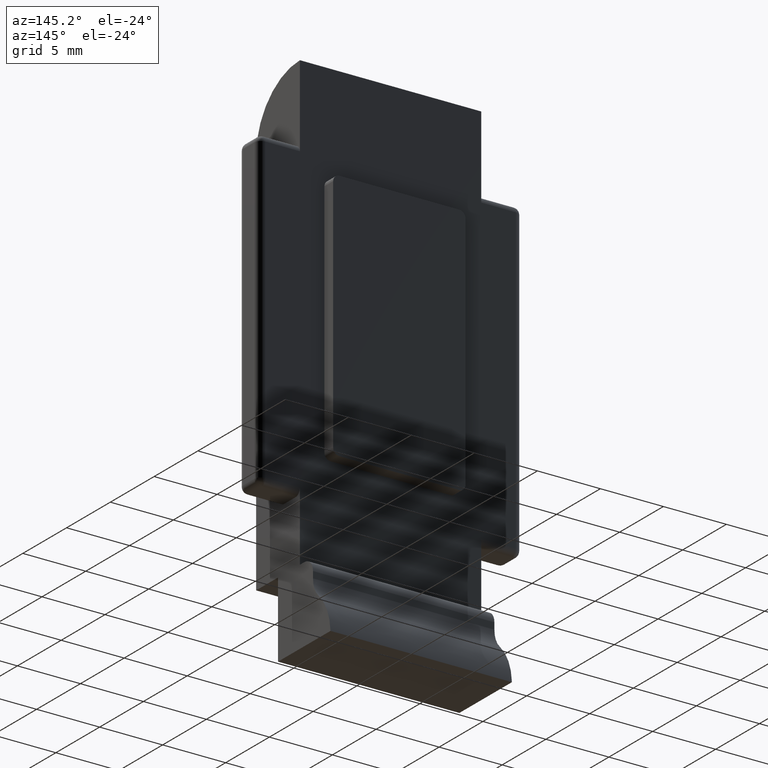
[diagram: clean part render]
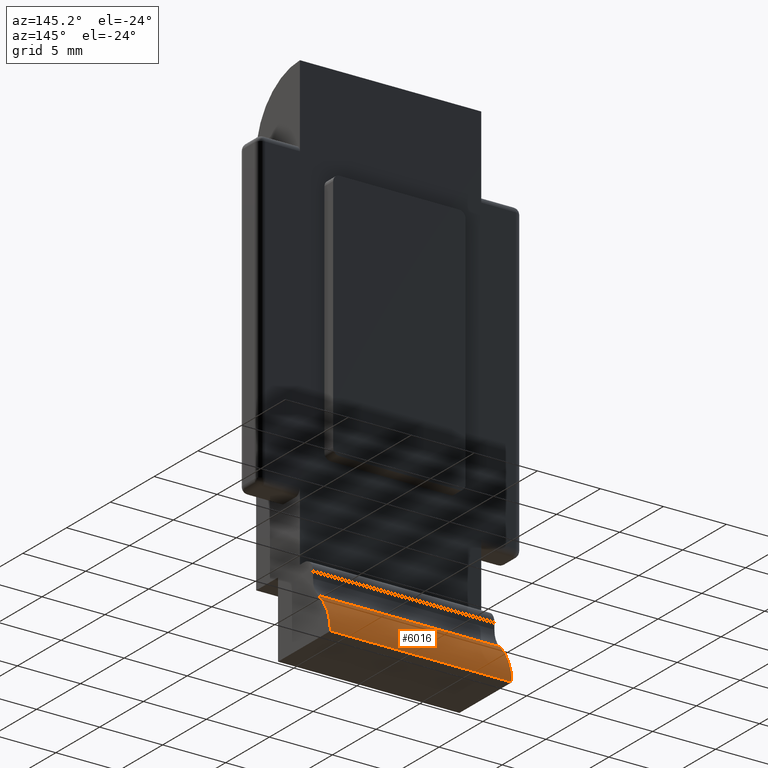
[diagram: same view with one face highlighted and labeled with its STEP entity id]
A machine part, auxiliary view. The second image highlights one B-rep face of the part: STEP entity #6016.
In plain terms, the highlighted cylindrical surface (partial cylindrical patch) has radius 4.5 mm, axis along (1, 0, 0).
Its self-contained STEP definition (entity closure, byte-faithful):
#326 = CYLINDRICAL_SURFACE ( 'NONE', #2310, 4.500000000000000900 ) ;
#992 = DIRECTION ( 'NONE',  ( -1.000000000000000000, -0.0000000000000000000, 0.0000000000000000000 ) ) ;
#1219 = DIRECTION ( 'NONE',  ( 1.000000000000000000, 0.0000000000000000000, 0.0000000000000000000 ) ) ;
#1513 = CARTESIAN_POINT ( 'NONE',  ( 14.40000000000000000, 3.499999999999996000, -5.999999999999998200 ) ) ;
#1570 = ORIENTED_EDGE ( 'NONE', *, *, #4689, .T. ) ;
#1807 = AXIS2_PLACEMENT_3D ( 'NONE', #7239, #992, #7961 ) ;
#1856 = CARTESIAN_POINT ( 'NONE',  ( 0.0000000000000000000, 2.116967167152068500, -2.964465433511271500 ) ) ;
#2310 = AXIS2_PLACEMENT_3D ( 'NONE', #7751, #5534, #6334 ) ;
#2403 = ORIENTED_EDGE ( 'NONE', *, *, #3708, .F. ) ;
#3168 = VERTEX_POINT ( 'NONE', #1856 ) ;
#3207 = DIRECTION ( 'NONE',  ( 1.000000000000000000, 0.0000000000000000000, 0.0000000000000000000 ) ) ;
#3708 = EDGE_CURVE ( 'NONE', #3168, #9021, #6477, .T. ) ;
#3819 = ORIENTED_EDGE ( 'NONE', *, *, #5608, .T. ) ;
#3828 = VECTOR ( 'NONE', #1219, 1000.000000000000000 ) ;
#3911 = DIRECTION ( 'NONE',  ( 0.0000000000000000000, 0.0000000000000000000, 1.000000000000000000 ) ) ;
#4429 = ORIENTED_EDGE ( 'NONE', *, *, #6787, .F. ) ;
#4550 = CARTESIAN_POINT ( 'NONE',  ( 0.0000000000000000000, 3.499999999999996000, -5.999999999999998200 ) ) ;
#4689 = EDGE_CURVE ( 'NONE', #3168, #8885, #5368, .T. ) ;
#5368 = LINE ( 'NONE', #5800, #3828 ) ;
#5534 = DIRECTION ( 'NONE',  ( 1.000000000000000000, 0.0000000000000000000, 0.0000000000000000000 ) ) ;
#5608 = EDGE_CURVE ( 'NONE', #8885, #6859, #8456, .T. ) ;
#5625 = CARTESIAN_POINT ( 'NONE',  ( 14.40000000000000000, 2.116967167152068500, -2.964465433511271500 ) ) ;
#5800 = CARTESIAN_POINT ( 'NONE',  ( 0.0000000000000000000, 2.116967167152068900, -2.964465433511271500 ) ) ;
#6016 = ADVANCED_FACE ( 'NONE', ( #9541 ), #326, .T. ) ;
#6334 = DIRECTION ( 'NONE',  ( 0.0000000000000000000, 0.0000000000000000000, -1.000000000000000000 ) ) ;
#6344 = EDGE_LOOP ( 'NONE', ( #2403, #1570, #3819, #4429 ) ) ;
#6477 = CIRCLE ( 'NONE', #6561, 4.500000000000000900 ) ;
#6561 = AXIS2_PLACEMENT_3D ( 'NONE', #6919, #7585, #3911 ) ;
#6787 = EDGE_CURVE ( 'NONE', #9021, #6859, #8565, .T. ) ;
#6859 = VERTEX_POINT ( 'NONE', #1513 ) ;
#6919 = CARTESIAN_POINT ( 'NONE',  ( 0.0000000000000000000, -0.9948567067557664300, -6.215088785697316700 ) ) ;
#7239 = CARTESIAN_POINT ( 'NONE',  ( 14.40000000000000000, -0.9948567067557664300, -6.215088785697316700 ) ) ;
#7410 = CARTESIAN_POINT ( 'NONE',  ( 0.0000000000000000000, 3.499999999999996000, -5.999999999999998200 ) ) ;
#7585 = DIRECTION ( 'NONE',  ( -1.000000000000000000, -0.0000000000000000000, 0.0000000000000000000 ) ) ;
#7751 = CARTESIAN_POINT ( 'NONE',  ( 0.0000000000000000000, -0.9948567067557664300, -6.215088785697316700 ) ) ;
#7961 = DIRECTION ( 'NONE',  ( 0.0000000000000000000, 0.0000000000000000000, 1.000000000000000000 ) ) ;
#8338 = VECTOR ( 'NONE', #3207, 1000.000000000000000 ) ;
#8456 = CIRCLE ( 'NONE', #1807, 4.500000000000000900 ) ;
#8565 = LINE ( 'NONE', #4550, #8338 ) ;
#8885 = VERTEX_POINT ( 'NONE', #5625 ) ;
#9021 = VERTEX_POINT ( 'NONE', #7410 ) ;
#9541 = FACE_OUTER_BOUND ( 'NONE', #6344, .T. ) ;